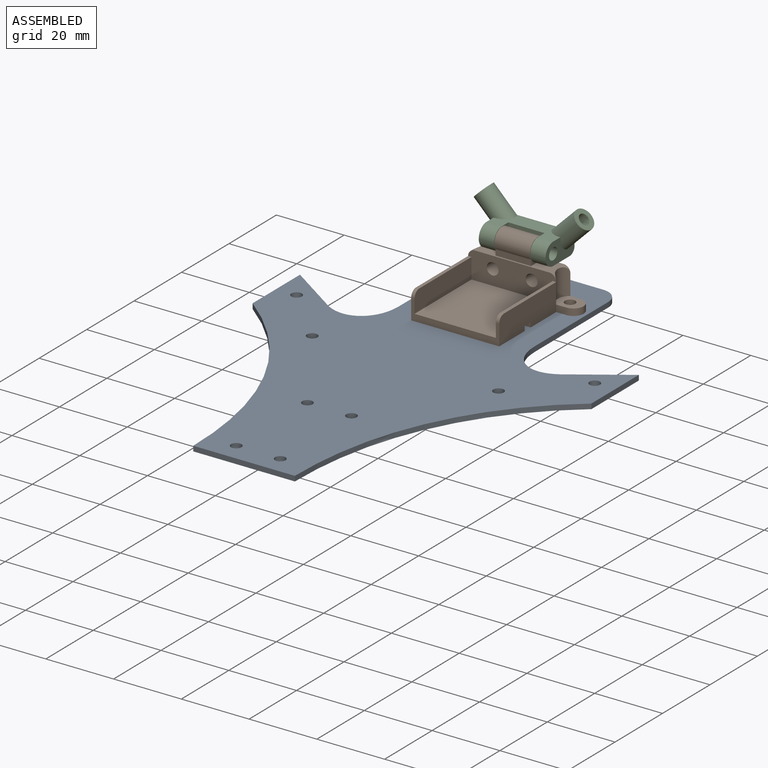
[diagram: assembled view]
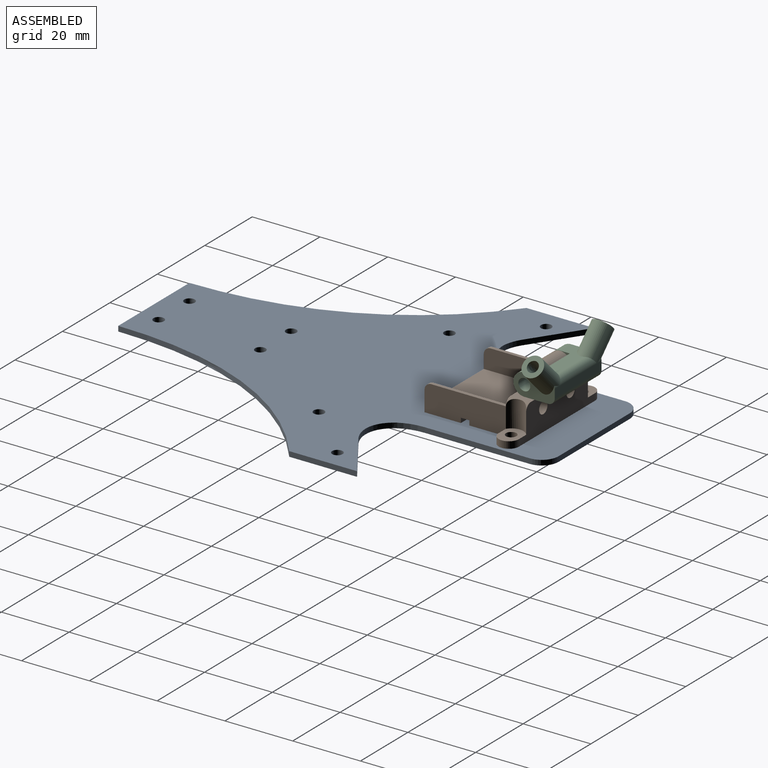
[diagram: assembled view, second angle]
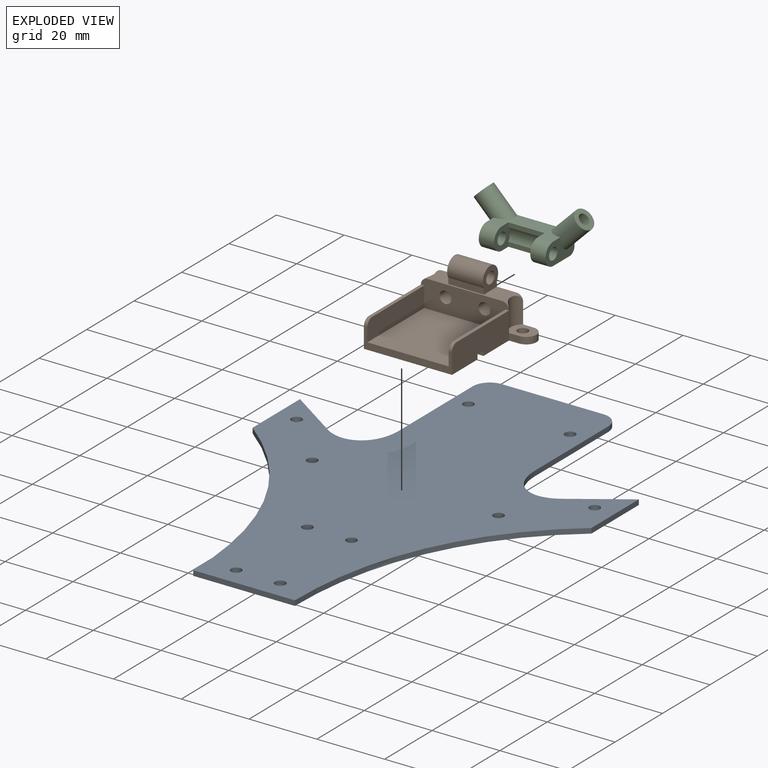
[diagram: exploded view]
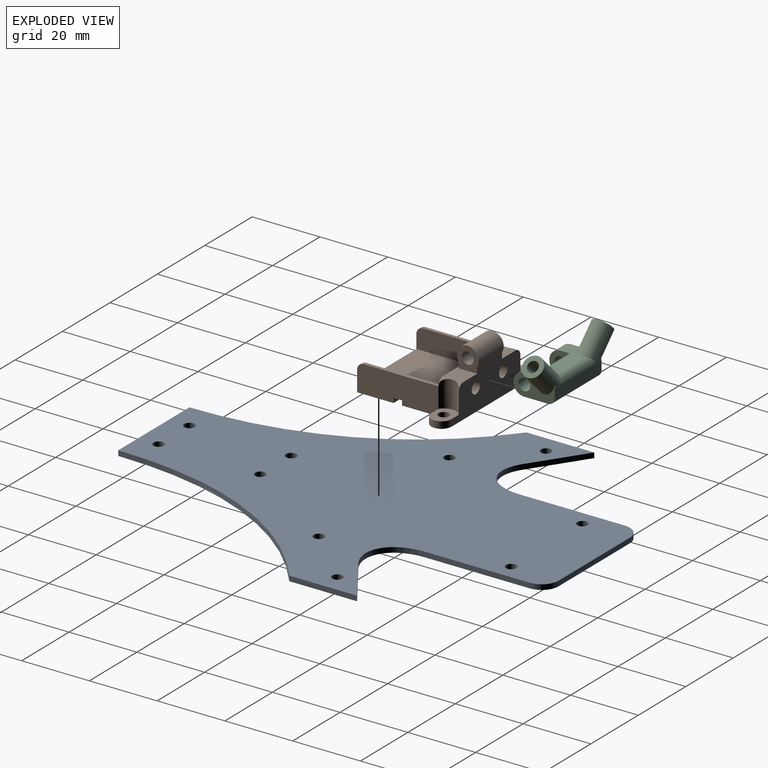
[diagram: exploded view, second angle]
ASSEMBLY  parts=3 mates=2
PART A: 26 faces, bbox 100x130x1.5 mm
  f0: plane 31x1.5mm, normal (-1,0,0), area 46.5mm2, adj f1,f23,f24,f25
  f1: extruded ~14.25x11.27mm, area 32.6mm2, adj f0,f2,f24,f25
  f2: plane 15.75x10.62mm, normal (0.56,0.83,0), area 28.5mm2, adj f1,f3,f24,f25
  f3: plane 20x1.5mm, normal (-1,0,0), area 30mm2, adj f2,f4,f24,f25
  f4: extruded ~75x35mm, area 128.8mm2, adj f3,f5,f24,f25
  f5: plane 30x1.5mm, normal (0,-1,0), area 45mm2, adj f4,f6,f24,f25
  f6: extruded ~75x35mm, area 128.8mm2, adj f5,f7,f24,f25
  f7: plane 20x1.5mm, normal (1,0,0), area 30mm2, adj f6,f8,f24,f25
  f8: plane 15.75x10.62mm, normal (-0.56,0.83,0), area 28.5mm2, adj f7,f9,f24,f25
  f9: extruded ~14.25x11.27mm, area 32.6mm2, adj f8,f10,f24,f25
  f10: plane 31x1.5mm, normal (1,0,0), area 46.5mm2, adj f9,f11,f24,f25
  f11: cylinder r=5mm len=5mm, axis (0,0,-1), area 11.8mm2, adj f10,f12,f24,f25
  f12: plane 30x1.5mm, normal (0,1,0), area 45mm2, adj f11,f23,f24,f25
  f13: cylinder r=1.55mm len=3.1mm, axis (0,0,-1), area 14.6mm2, adj f24,f25
  f14: cylinder r=1.55mm len=3.1mm, axis (0,0,-1), area 14.6mm2, adj f24,f25
  f15: cylinder r=1.55mm len=3.1mm, axis (0,0,-1), area 14.6mm2, adj f24,f25
  f16: cylinder r=1.55mm len=3.1mm, axis (0,0,-1), area 14.6mm2, adj f24,f25
  f17: cylinder r=1.55mm len=3.1mm, axis (0,0,-1), area 14.6mm2, adj f24,f25
  f18: cylinder r=1.55mm len=3.1mm, axis (0,0,-1), area 14.6mm2, adj f24,f25
  f19: cylinder r=1.55mm len=3.1mm, axis (0,0,-1), area 14.6mm2, adj f24,f25
  f20: cylinder r=1.55mm len=3.1mm, axis (0,0,-1), area 14.6mm2, adj f24,f25
  f21: cylinder r=1.55mm len=3.1mm, axis (0,0,-1), area 14.6mm2, adj f24,f25
  f22: cylinder r=1.55mm len=3.1mm, axis (0,0,-1), area 14.6mm2, adj f24,f25
  f23: cylinder r=5mm len=5mm, axis (0,0,-1), area 11.8mm2, adj f0,f12,f24,f25
  f24: plane 130x100mm, normal (0,0,1), area 6615.7mm2, adj f0,f1,f2,f3,f4,f5,f6,f7
  f25: plane 130x100mm, normal (0,0,-1), area 6615.7mm2, adj f0,f1,f2,f3,f4,f5,f6,f7
PART B: 39 faces, bbox 38x30.5x16.7 mm
  f0: plane 38x16.75mm, normal (0,0,-1), area 484.7mm2, adj f1,f2,f11,f22,f24,f25,f26,f28
  f1: plane 24.01x8mm, normal (1,0,0), area 187.7mm2, adj f0,f7,f8,f12,f22,f23,f31,f32
  f2: plane 24.01x8mm, normal (-1,0,0), area 187.7mm2, adj f0,f8,f12,f13,f26,f27,f30,f32
  f3: plane 22x6mm, normal (0,0,1), area 74.2mm2, adj f4,f5,f6,f11,f14,f35,f36
  f4: plane 6.7x6.5mm, normal (1,0,0), area 27.1mm2, adj f3,f6,f11,f18,f19
  f5: plane 6.7x6.5mm, normal (-1,0,0), area 27.1mm2, adj f3,f6,f11,f18,f19
  f6: plane 10.5x1.72mm, normal (0,-1,0), area 18mm2, adj f3,f4,f5,f18
  f7: plane 22x1mm, normal (0,0,1), area 22mm2, adj f1,f14,f15,f37
  f8: plane 26x6mm, normal (0,-1,0), area 60mm2, adj f1,f2,f12,f15,f16,f17,f37,f38
  f9: plane 6x0.01mm, normal (1,0,0), area 0mm2, adj f11,f23,f31,f35
  f10: plane 6x0.01mm, normal (-1,0,0), area 0mm2, adj f11,f27,f30,f36
  f11: plane 32x11.72mm, normal (0,1,0), area 269.1mm2, adj f0,f3,f4,f5,f9,f10,f18,f20
  f12: plane 26x10.75mm, normal (0,0,-1), area 279.5mm2, adj f1,f2,f8,f34
  f13: plane 22x1mm, normal (0,0,1), area 22mm2, adj f2,f14,f16,f38
  f14: plane 26x8mm, normal (0,-1,0), area 175mm2, adj f3,f7,f13,f15,f16,f17,f20,f21
  f15: plane 24x6mm, normal (-1,0,0), area 143.1mm2, adj f7,f8,f14,f17,f37
  f16: plane 24x6mm, normal (1,0,0), area 143.1mm2, adj f8,f13,f14,f17,f38
  f17: plane 24x24mm, normal (0,0,1), area 576mm2, adj f8,f14,f15,f16
  f18: cylinder r=3.25mm len=10.5mm, axis (1,0,0), area 145.6mm2, adj f4,f5,f6,f11
  f19: cylinder r=1.75mm len=10.5mm, axis (1,0,0), area 115.5mm2, adj f4,f5
  f20: cylinder r=1.75mm len=6mm, axis (0,-1,0), area 66mm2, adj f11,f14
  f21: cylinder r=1.75mm len=6mm, axis (0,-1,0), area 66mm2, adj f11,f14
  f22: plane 3x2mm, normal (0,-1,0), area 6mm2, adj f0,f1,f23,f25
  f23: plane 7.6x6mm, normal (0,0,1), area 31.3mm2, adj f1,f9,f11,f22,f24,f25,f31
  f24: cylinder r=1.55mm len=3.1mm, axis (0,0,1), area 19.5mm2, adj f0,f23
  f25: cylinder r=3mm len=6mm, axis (0,0,1), area 18.8mm2, adj f0,f11,f22,f23
  f26: plane 3x2mm, normal (0,-1,0), area 6mm2, adj f0,f2,f27,f29
  f27: plane 7.6x6mm, normal (0,0,1), area 31.3mm2, adj f2,f10,f11,f26,f28,f29,f30
  f28: cylinder r=1.55mm len=3.1mm, axis (0,0,1), area 19.5mm2, adj f0,f27
  f29: cylinder r=3mm len=6mm, axis (0,0,1), area 18.8mm2, adj f0,f11,f26,f27
  f30: cylinder r=3.6mm len=7.96mm, axis (0,0,1), area 54mm2, adj f2,f10,f27,f36
  f31: cylinder r=3.6mm len=7.96mm, axis (0,0,1), area 54mm2, adj f1,f9,f23,f35
  f32: plane 26x1.4mm, normal (0,-1,0), area 36.4mm2, adj f0,f1,f2,f33
  f33: plane 26x2.5mm, normal (0,0,-1), area 65mm2, adj f1,f2,f32,f34
  f34: plane 26x1.4mm, normal (0,1,0), area 36.4mm2, adj f1,f2,f12,f33
  f35: cylinder r=2mm len=6mm, axis (0,-1,0), area 5.8mm2, adj f1,f3,f9,f11,f14,f31
  f36: cylinder r=2mm len=6mm, axis (0,1,0), area 5.8mm2, adj f2,f3,f10,f11,f14,f30
  f37: cylinder r=2mm len=2mm, axis (-1,0,0), area 3.1mm2, adj f1,f7,f8,f15
  f38: cylinder r=2mm len=2mm, axis (-1,0,0), area 3.1mm2, adj f2,f8,f13,f16
PART C: 24 faces, bbox 35.9x14.4x15.7 mm
  f0: plane 19.71x7.02mm, normal (0,0,-1), area 77.9mm2, adj f1,f5,f6,f7,f9,f10,f13,f20
  f1: plane 13.52x7.76mm, normal (1,0,0), area 44.5mm2, adj f0,f2,f4,f5,f8,f15,f22,f23
  f2: plane 21.8x9.1mm, normal (0,0,1), area 79.5mm2, adj f1,f5,f6,f7,f9,f10,f12,f15
  f3: cylinder r=3.4mm len=10.7mm, axis (1,0,0), area 43.9mm2, adj f6,f9,f12,f13
  f4: cylinder r=1.75mm len=4.5mm, axis (-1,0,0), area 49.5mm2, adj f1,f6
  f5: cylinder r=3.25mm len=6.5mm, axis (-1,0,0), area 45.9mm2, adj f0,f1,f2,f6
  f6: plane 6.65x6.5mm, normal (-1,0,0), area 26.7mm2, adj f0,f2,f3,f4,f5,f12,f13
  f7: plane 13.52x7.76mm, normal (-1,0,0), area 44.5mm2, adj f0,f2,f8,f10,f11,f17,f22,f23
  f8: plane 19.7x2.5mm, normal (0,1,0), area 49.3mm2, adj f1,f7,f22,f23
  f9: plane 6.65x6.5mm, normal (1,0,0), area 26.7mm2, adj f0,f2,f3,f10,f11,f12,f13
  f10: cylinder r=3.25mm len=6.5mm, axis (1,0,0), area 45.9mm2, adj f0,f2,f7,f9
  f11: cylinder r=1.75mm len=4.5mm, axis (1,0,0), area 49.5mm2, adj f7,f9
  f12: plane 10.7x1.32mm, normal (0,-1,0), area 14.1mm2, adj f2,f3,f6,f9
  f13: plane 10.7x1.32mm, normal (0,-1,0), area 14.1mm2, adj f0,f3,f6,f9
  f14: plane 6x4.24mm, normal (0.71,0,0.71), area 20.2mm2, adj f15,f19
  f15: cylinder r=3mm len=11.31mm, axis (0.71,0,0.71), area 163.1mm2, adj f1,f2,f14,f23
  f16: plane 6x4.24mm, normal (-0.71,0,0.71), area 20.2mm2, adj f17,f18
  f17: cylinder r=3mm len=11.31mm, axis (-0.71,0,0.71), area 163.1mm2, adj f2,f7,f16,f23
  f18: bspline ~11.24x11.16mm, area 126.8mm2, adj f16,f20
  f19: bspline ~11.24x11.16mm, area 126.8mm2, adj f14,f21
  f20: bspline ~5.1x5mm, area 18.4mm2, adj f0,f18,f22
  f21: bspline ~5.1x5mm, area 18.4mm2, adj f0,f19,f22
  f22: cylinder r=2mm len=19.7mm, axis (1,0,0), area 53.9mm2, adj f0,f1,f7,f8,f20,f21
  f23: cylinder r=2mm len=19.7mm, axis (1,0,0), area 44.3mm2, adj f1,f2,f7,f8,f15,f17
PLACE A at identity fixed
PLACE B t=(0,39,1.5)mm
PLACE C rot(axis=(1,0,0),0deg) t=(0,39,1.5)mm
MATE fastened B.f24 <-> A.f22  axis (0,0,-1) through (15,51,1.5)mm
MATE revolute C.f10 <-> B.f18  axis (1,0,0) through (-5.35,51.25,14.95)mm
